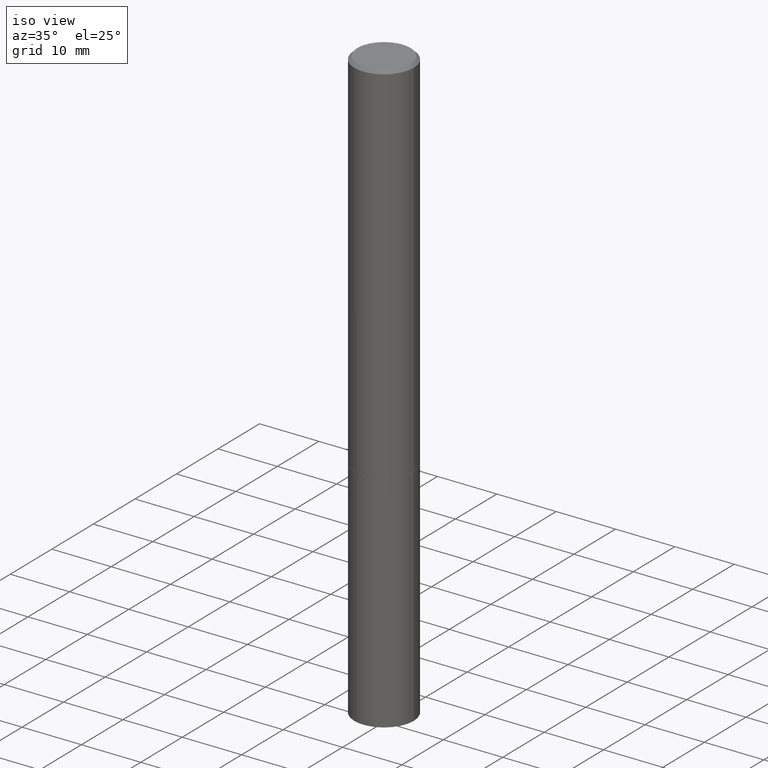
[diagram: clean part render]
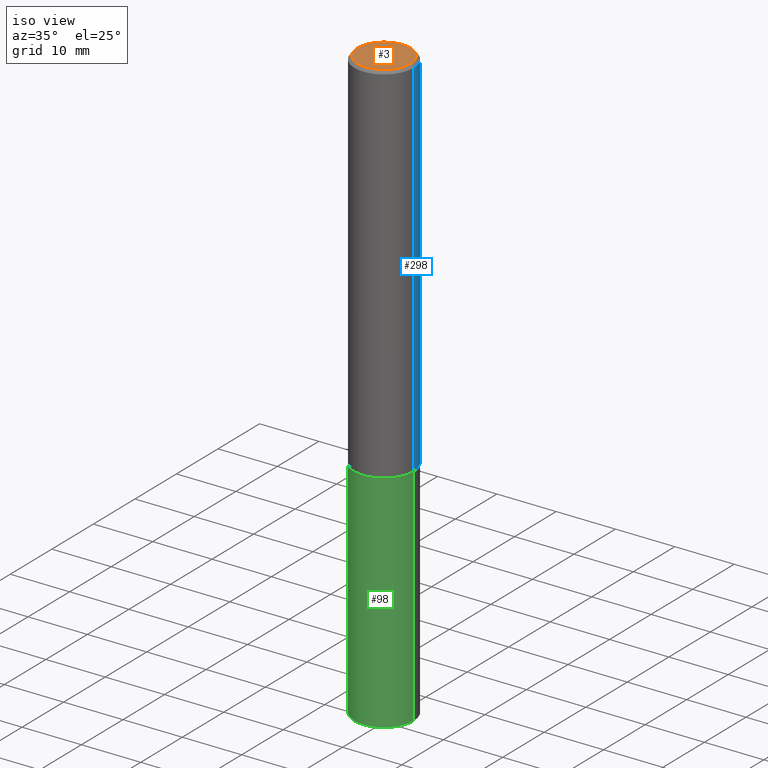
[diagram: same view with three faces highlighted in distinct colors, each labeled with its STEP entity id]
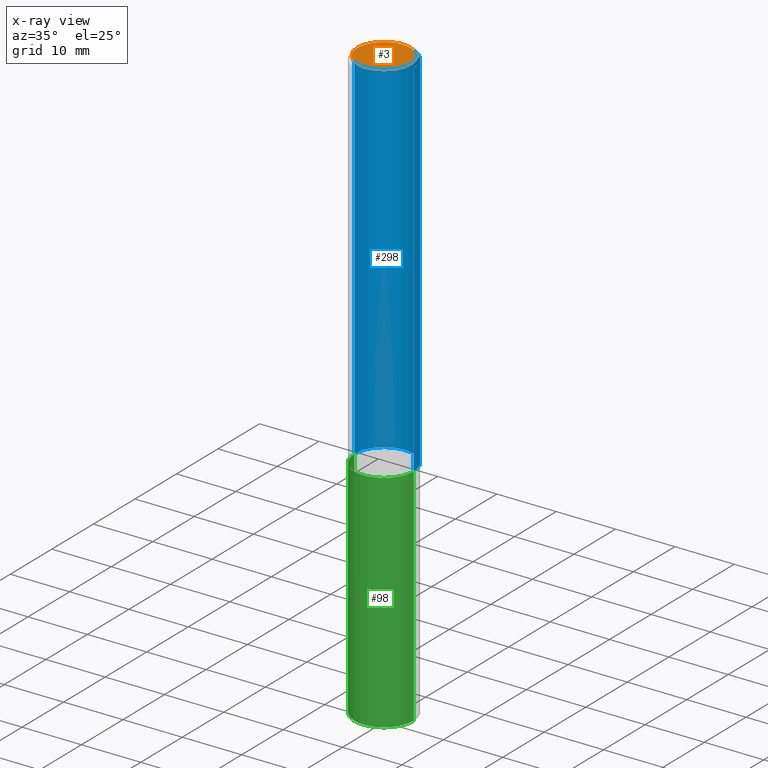
[diagram: x-ray of the same camera — body ghosted, the three highlighted faces saturated]
A machine part, iso view with three faces highlighted in distinct colors.
The next image is the same camera in x-ray (body ghosted, the three faces saturated) — at least one of them is partly hidden behind the body in this view.
Their STEP definitions:

[orange] entity #3 — the highlighted planar face has unit normal (0, -0, -1).
#3 = ADVANCED_FACE ( 'NONE', ( #287 ), #257, .F. ) ;
#5 = CARTESIAN_POINT ( 'NONE',  ( 1.234936949548815012E-15, 0.1768499999999998407, -6.153342185293596592E-16 ) ) ;
#69 = EDGE_LOOP ( 'NONE', ( #147, #114 ) ) ;
#74 = CIRCLE ( 'NONE', #183, 0.1768499999999998407 ) ;
#90 = EDGE_CURVE ( 'NONE', #325, #264, #74, .T. ) ;
#94 = DIRECTION ( 'NONE',  ( -1.000000000000000000, 6.982962677686265922E-15, -4.876176775795935793E-29 ) ) ;
#104 = DIRECTION ( 'NONE',  ( -2.445468806185136597E-29, 3.491481338843145583E-15, 1.000000000000000000 ) ) ;
#108 = CARTESIAN_POINT ( 'NONE',  ( -1.043851414335219820E-46, 1.490343170380447200E-32, 4.268512490100411279E-18 ) ) ;
#114 = ORIENTED_EDGE ( 'NONE', *, *, #283, .T. ) ;
#147 = ORIENTED_EDGE ( 'NONE', *, *, #90, .T. ) ;
#159 = DIRECTION ( 'NONE',  ( 1.000000000000000000, -6.982962677686266711E-15, 4.875932113059882493E-29 ) ) ;
#183 = AXIS2_PLACEMENT_3D ( 'NONE', #108, #104, #159 ) ;
#197 = CARTESIAN_POINT ( 'NONE',  ( -1.043851414335219820E-46, 1.490343170380447200E-32, 4.268512490100411279E-18 ) ) ;
#223 = DIRECTION ( 'NONE',  ( -2.445468806185136597E-29, 3.491481338843145583E-15, 1.000000000000000000 ) ) ;
#231 = DIRECTION ( 'NONE',  ( 2.438088387897960049E-29, -3.491481338843145188E-15, -1.000000000000000000 ) ) ;
#257 = PLANE ( 'NONE',  #310 ) ;
#264 = VERTEX_POINT ( 'NONE', #338 ) ;
#278 = CARTESIAN_POINT ( 'NONE',  ( -0.1768499999999998407, 1.269851762937246464E-15, 4.268512490091652920E-18 ) ) ;
#283 = EDGE_CURVE ( 'NONE', #264, #325, #362, .T. ) ;
#287 = FACE_OUTER_BOUND ( 'NONE', #69, .T. ) ;
#310 = AXIS2_PLACEMENT_3D ( 'NONE', #5, #231, #94 ) ;
#312 = DIRECTION ( 'NONE',  ( 1.000000000000000000, -6.982962677686266711E-15, 4.875932113059882493E-29 ) ) ;
#321 = AXIS2_PLACEMENT_3D ( 'NONE', #197, #223, #312 ) ;
#325 = VERTEX_POINT ( 'NONE', #278 ) ;
#338 = CARTESIAN_POINT ( 'NONE',  ( 0.1768499999999998407, -1.316798864272041155E-15, 4.268512490109333727E-18 ) ) ;
#362 = CIRCLE ( 'NONE', #321, 0.1768499999999998407 ) ;

[blue] entity #298 — the highlighted cylindrical surface (edge-blend (fillet) strip) has radius 5 mm, axis along (-0, 0, 1).
#4 = CARTESIAN_POINT ( 'NONE',  ( 0.1968500000000000250, -9.893461521745931567E-15, -2.439900000000000180 ) ) ;
#9 = ORIENTED_EDGE ( 'NONE', *, *, #210, .T. ) ;
#11 = CIRCLE ( 'NONE', #363, 0.1968500000000000250 ) ;
#12 = DIRECTION ( 'NONE',  ( -2.445468806185136597E-29, 3.491481338843145583E-15, 1.000000000000000000 ) ) ;
#18 = CARTESIAN_POINT ( 'NONE',  ( -0.1968499999999999139, 1.398703375343756604E-15, -9.682923725166778072E-30 ) ) ;
#19 = CARTESIAN_POINT ( 'NONE',  ( -0.1968499999999998307, 1.304766576325677324E-15, -0.02000000000000002123 ) ) ;
#29 = ORIENTED_EDGE ( 'NONE', *, *, #59, .T. ) ;
#42 = CIRCLE ( 'NONE', #138, 0.1968499999999998307 ) ;
#49 = LINE ( 'NONE', #18, #243 ) ;
#54 = CARTESIAN_POINT ( 'NONE',  ( -0.1968500000000000250, -2.895644097366366474E-15, -2.439900000000000180 ) ) ;
#59 = EDGE_CURVE ( 'NONE', #344, #192, #11, .T. ) ;
#62 = EDGE_CURVE ( 'NONE', #89, #254, #42, .T. ) ;
#84 = EDGE_CURVE ( 'NONE', #344, #89, #249, .T. ) ;
#89 = VERTEX_POINT ( 'NONE', #157 ) ;
#102 = CYLINDRICAL_SURFACE ( 'NONE', #251, 0.1968499999999999139 ) ;
#107 = CARTESIAN_POINT ( 'NONE',  ( 5.966699340211115678E-29, -8.518865318643391536E-15, -2.439900000000000180 ) ) ;
#115 = FACE_OUTER_BOUND ( 'NONE', #314, .T. ) ;
#132 = DIRECTION ( 'NONE',  ( 1.000000000000000000, -6.982962677686266711E-15, 0.000000000000000000 ) ) ;
#135 = DIRECTION ( 'NONE',  ( -2.445468806185136597E-29, 3.491481338843145583E-15, 1.000000000000000000 ) ) ;
#138 = AXIS2_PLACEMENT_3D ( 'NONE', #188, #135, #132 ) ;
#141 = ORIENTED_EDGE ( 'NONE', *, *, #62, .F. ) ;
#157 = CARTESIAN_POINT ( 'NONE',  ( 0.1968499999999998307, -1.420318657638187938E-15, -0.02000000000000002123 ) ) ;
#181 = VECTOR ( 'NONE', #242, 39.37007874015748143 ) ;
#188 = CARTESIAN_POINT ( 'NONE',  ( 4.890937612370278413E-31, -6.982962677686297772E-17, -0.02000000000000002123 ) ) ;
#192 = VERTEX_POINT ( 'NONE', #54 ) ;
#199 = DIRECTION ( 'NONE',  ( 1.000000000000000000, -6.982962677686266711E-15, 4.876176775795935793E-29 ) ) ;
#207 = ORIENTED_EDGE ( 'NONE', *, *, #84, .F. ) ;
#210 = EDGE_CURVE ( 'NONE', #192, #254, #49, .T. ) ;
#217 = DIRECTION ( 'NONE',  ( 1.000000000000000000, -6.982962677686262766E-15, 0.000000000000000000 ) ) ;
#242 = DIRECTION ( 'NONE',  ( -2.445468806185136877E-29, 3.491481338843145188E-15, 1.000000000000000000 ) ) ;
#243 = VECTOR ( 'NONE', #359, 39.37007874015748143 ) ;
#246 = DIRECTION ( 'NONE',  ( -2.445468806185136597E-29, 3.491481338843145583E-15, 1.000000000000000000 ) ) ;
#249 = LINE ( 'NONE', #361, #181 ) ;
#251 = AXIS2_PLACEMENT_3D ( 'NONE', #272, #12, #199 ) ;
#254 = VERTEX_POINT ( 'NONE', #19 ) ;
#272 = CARTESIAN_POINT ( 'NONE',  ( 0.000000000000000000, 0.000000000000000000, 0.000000000000000000 ) ) ;
#298 = ADVANCED_FACE ( 'NONE', ( #115 ), #102, .T. ) ;
#314 = EDGE_LOOP ( 'NONE', ( #29, #9, #141, #207 ) ) ;
#344 = VERTEX_POINT ( 'NONE', #4 ) ;
#359 = DIRECTION ( 'NONE',  ( -2.445468806185136877E-29, 3.491481338843145188E-15, 1.000000000000000000 ) ) ;
#361 = CARTESIAN_POINT ( 'NONE',  ( 0.1968499999999999139, -1.374596203102541017E-15, 9.598753983154295253E-30 ) ) ;
#363 = AXIS2_PLACEMENT_3D ( 'NONE', #107, #246, #217 ) ;

[green] entity #98 — the highlighted cylindrical surface (edge-blend (fillet) strip) has radius 5 mm, axis along (-0, 0, 1).
#1 = AXIS2_PLACEMENT_3D ( 'NONE', #303, #267, #355 ) ;
#2 = VERTEX_POINT ( 'NONE', #171 ) ;
#15 = CARTESIAN_POINT ( 'NONE',  ( 0.1968500000000000250, -9.896953003084776152E-15, -2.440900000000000070 ) ) ;
#33 = CIRCLE ( 'NONE', #1, 0.1968500000000000250 ) ;
#40 = ORIENTED_EDGE ( 'NONE', *, *, #342, .T. ) ;
#55 = DIRECTION ( 'NONE',  ( -2.445468806185136877E-29, 3.491481338843145188E-15, 1.000000000000000000 ) ) ;
#58 = AXIS2_PLACEMENT_3D ( 'NONE', #332, #220, #285 ) ;
#81 = LINE ( 'NONE', #189, #244 ) ;
#98 = ADVANCED_FACE ( 'NONE', ( #212 ), #302, .T. ) ;
#112 = VERTEX_POINT ( 'NONE', #219 ) ;
#146 = CARTESIAN_POINT ( 'NONE',  ( 0.1968500000000000250, -1.374596203102541608E-15, 9.598753983154300858E-30 ) ) ;
#151 = AXIS2_PLACEMENT_3D ( 'NONE', #356, #184, #275 ) ;
#154 = ORIENTED_EDGE ( 'NONE', *, *, #311, .T. ) ;
#171 = CARTESIAN_POINT ( 'NONE',  ( -0.1968500000000000250, -9.735456040160091980E-15, -2.440900000000000070 ) ) ;
#184 = DIRECTION ( 'NONE',  ( -2.445468806185136597E-29, 3.491481338843145583E-15, 1.000000000000000000 ) ) ;
#189 = CARTESIAN_POINT ( 'NONE',  ( -0.1968500000000000250, 1.398703375343757393E-15, -9.682923725166783677E-30 ) ) ;
#193 = CARTESIAN_POINT ( 'NONE',  ( -0.1968500000000000250, -9.735456040160091980E-15, -3.937000000000000277 ) ) ;
#194 = EDGE_CURVE ( 'NONE', #2, #252, #33, .T. ) ;
#211 = DIRECTION ( 'NONE',  ( -2.445468806185136877E-29, 3.491481338843145188E-15, 1.000000000000000000 ) ) ;
#212 = FACE_OUTER_BOUND ( 'NONE', #318, .T. ) ;
#219 = CARTESIAN_POINT ( 'NONE',  ( 0.1968500000000000250, -1.512055823412800660E-14, -3.937000000000000277 ) ) ;
#220 = DIRECTION ( 'NONE',  ( -2.445468806185136597E-29, 3.491481338843145583E-15, 1.000000000000000000 ) ) ;
#244 = VECTOR ( 'NONE', #55, 39.37007874015748143 ) ;
#252 = VERTEX_POINT ( 'NONE', #15 ) ;
#261 = VECTOR ( 'NONE', #211, 39.37007874015748143 ) ;
#267 = DIRECTION ( 'NONE',  ( -2.445468806185136597E-29, 3.491481338843145583E-15, 1.000000000000000000 ) ) ;
#275 = DIRECTION ( 'NONE',  ( 1.000000000000000000, -6.982962677686265922E-15, 4.876176775795935793E-29 ) ) ;
#279 = ORIENTED_EDGE ( 'NONE', *, *, #194, .F. ) ;
#285 = DIRECTION ( 'NONE',  ( 1.000000000000000000, -6.982962677686267499E-15, 0.000000000000000000 ) ) ;
#302 = CYLINDRICAL_SURFACE ( 'NONE', #151, 0.1968500000000000250 ) ;
#303 = CARTESIAN_POINT ( 'NONE',  ( 5.969144809017300159E-29, -8.522356799982234543E-15, -2.440900000000000070 ) ) ;
#307 = VERTEX_POINT ( 'NONE', #193 ) ;
#311 = EDGE_CURVE ( 'NONE', #307, #112, #357, .T. ) ;
#318 = EDGE_LOOP ( 'NONE', ( #320, #154, #40, #279 ) ) ;
#320 = ORIENTED_EDGE ( 'NONE', *, *, #337, .F. ) ;
#324 = LINE ( 'NONE', #146, #261 ) ;
#332 = CARTESIAN_POINT ( 'NONE',  ( 9.627810689950883669E-29, -1.374596203102546341E-14, -3.937000000000000277 ) ) ;
#337 = EDGE_CURVE ( 'NONE', #307, #2, #81, .T. ) ;
#342 = EDGE_CURVE ( 'NONE', #112, #252, #324, .T. ) ;
#355 = DIRECTION ( 'NONE',  ( 1.000000000000000000, -6.982962677686267499E-15, 0.000000000000000000 ) ) ;
#356 = CARTESIAN_POINT ( 'NONE',  ( 0.000000000000000000, 0.000000000000000000, 0.000000000000000000 ) ) ;
#357 = CIRCLE ( 'NONE', #58, 0.1968500000000000250 ) ;